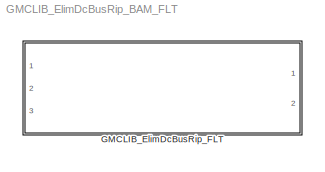
MODEL GMCLIB_ElimDcBusRip_BAM_FLT
KIND model
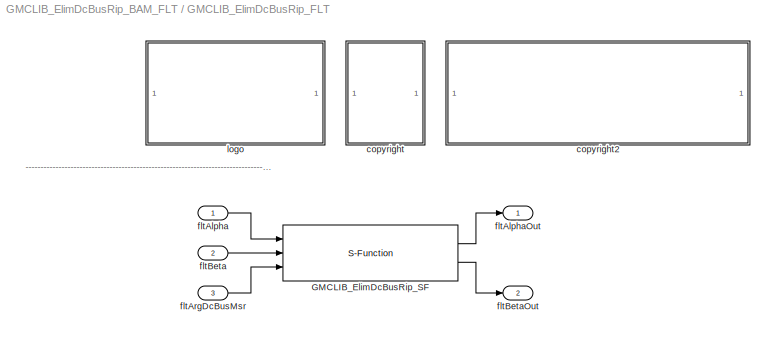
BLOCK [SubSystem] GMCLIB_ElimDcBusRip_FLT
  Ports = [3, 2]
  RequestExecContextInheritance = off
  SID = 1
BLOCK [S-Function] GMCLIB_ElimDcBusRip_FLT/GMCLIB_ElimDcBusRip_SF
  EnableBusSupport = off
  FunctionName = GMCLIB_ElimDcBusRip_SF_FLT
  Parameters = fltModIndex
  Ports = [3, 2]
  SID = 4
BLOCK [SubSystem] GMCLIB_ElimDcBusRip_FLT/<copyright redacted>
  Ports = []
  RequestExecContextInheritance = off
  SID = 14
BLOCK [SubSystem] GMCLIB_ElimDcBusRip_FLT/copyright2
  Ports = []
  RequestExecContextInheritance = off
  SID = 17
BLOCK [Inport] GMCLIB_ElimDcBusRip_FLT/fltAlpha
  IconDisplay = Port number
  SID = 5
BLOCK [Outport] GMCLIB_ElimDcBusRip_FLT/fltAlphaOut
  IconDisplay = Port number
  SID = 8
BLOCK [Inport] GMCLIB_ElimDcBusRip_FLT/fltArgDcBusMsr
  IconDisplay = Port number
  Port = 3
  SID = 7
BLOCK [Inport] GMCLIB_ElimDcBusRip_FLT/fltBeta
  IconDisplay = Port number
  Port = 2
  SID = 6
BLOCK [Outport] GMCLIB_ElimDcBusRip_FLT/fltBetaOut
  IconDisplay = Port number
  Port = 2
  SID = 9
BLOCK [SubSystem] GMCLIB_ElimDcBusRip_FLT/logo
  Ports = []
  RequestExecContextInheritance = off
  SID = 10
ANNOTATION GMCLIB_ElimDcBusRip_FLT: ---------------------------------------------------------------------------------------------------------------------------------------------------------------------------------------------------
LINE GMCLIB_ElimDcBusRip_FLT/GMCLIB_ElimDcBusRip_SF:1 -> GMCLIB_ElimDcBusRip_FLT/fltAlphaOut:1
LINE GMCLIB_ElimDcBusRip_FLT/GMCLIB_ElimDcBusRip_SF:2 -> GMCLIB_ElimDcBusRip_FLT/fltBetaOut:1
LINE GMCLIB_ElimDcBusRip_FLT/fltAlpha:1 -> GMCLIB_ElimDcBusRip_FLT/GMCLIB_ElimDcBusRip_SF:1
LINE GMCLIB_ElimDcBusRip_FLT/fltArgDcBusMsr:1 -> GMCLIB_ElimDcBusRip_FLT/GMCLIB_ElimDcBusRip_SF:3
LINE GMCLIB_ElimDcBusRip_FLT/fltBeta:1 -> GMCLIB_ElimDcBusRip_FLT/GMCLIB_ElimDcBusRip_SF:2
